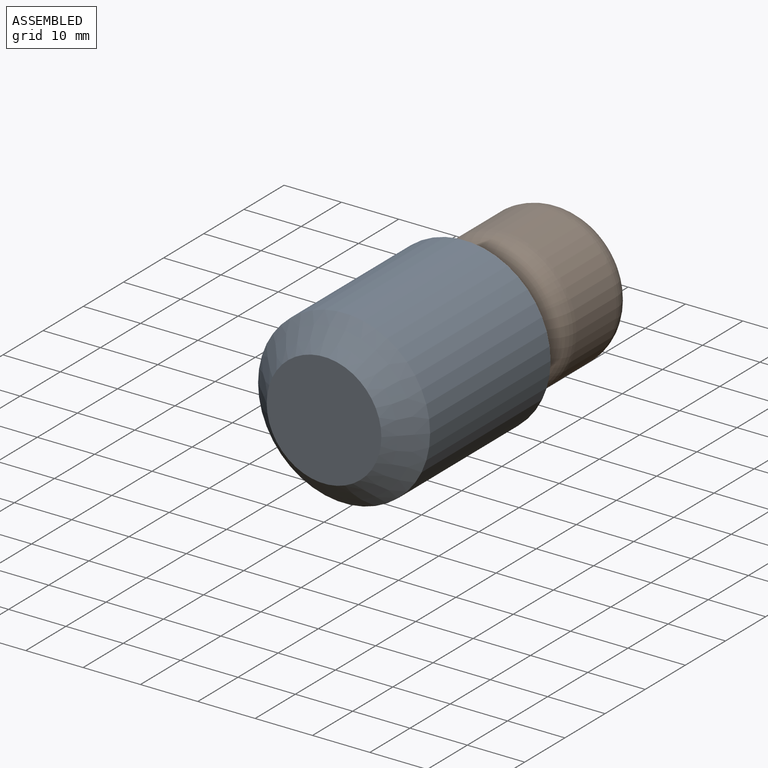
[diagram: assembled view]
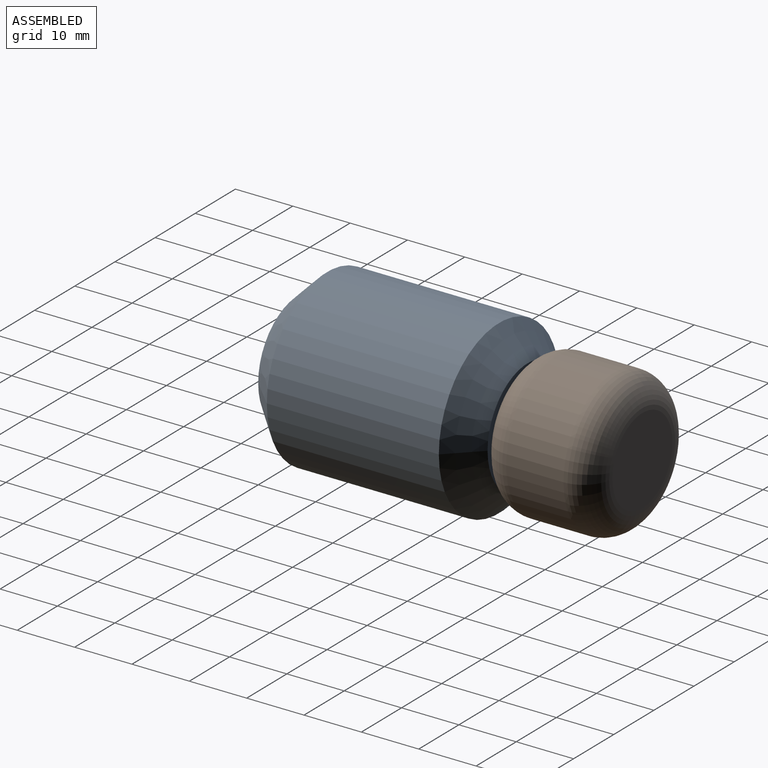
[diagram: assembled view, second angle]
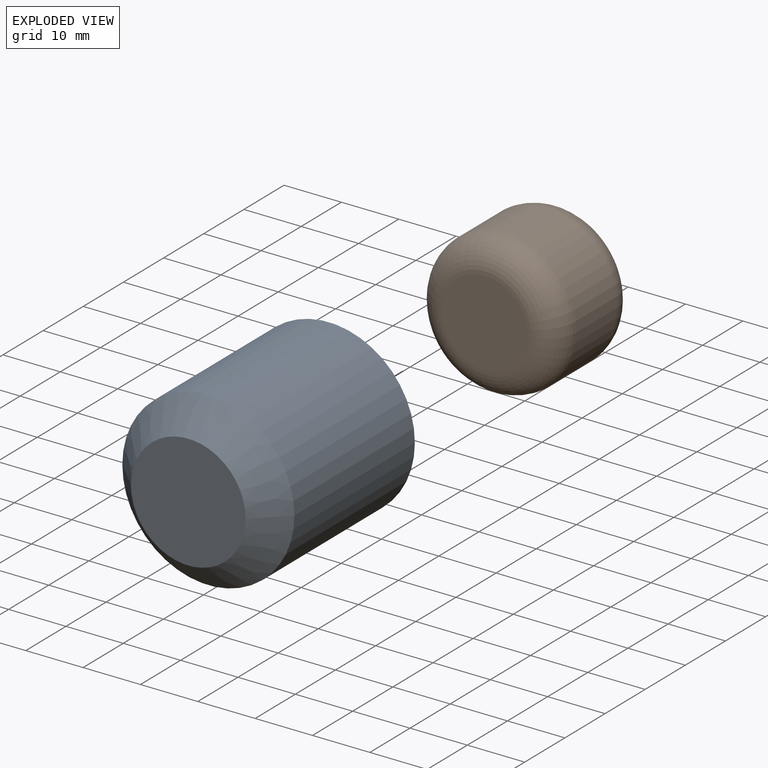
[diagram: exploded view]
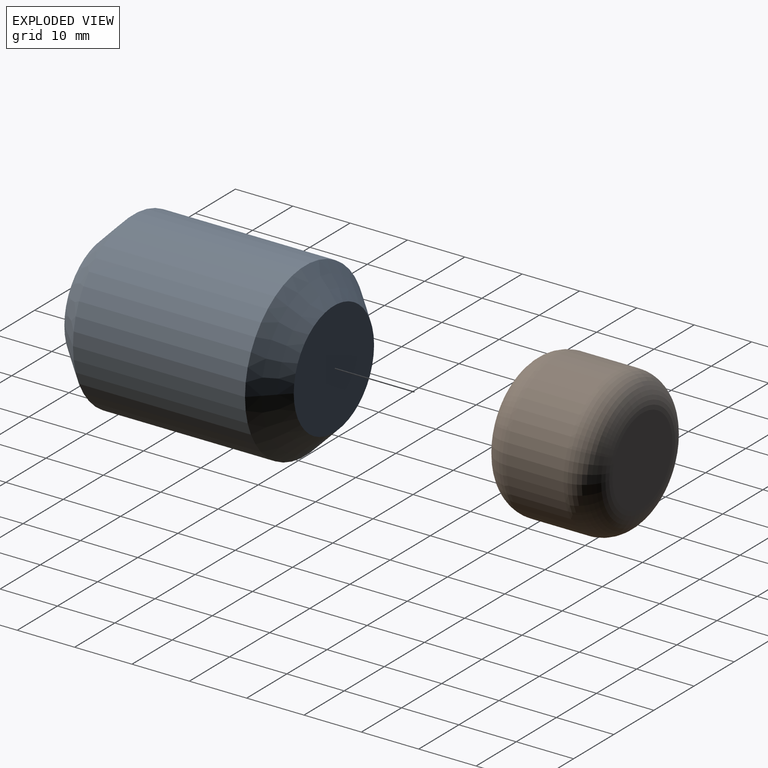
[diagram: exploded view, second angle]
ASSEMBLY  parts=2 mates=2
PART A: 5 faces, bbox 30x30x40 mm
  f0: cylinder r=15mm len=30mm, axis (0,0,-1), area 2827.4mm2, adj f3,f4
  f1: plane 20x20mm, normal (0,0,1), area 314.2mm2, adj f3
  f2: plane 20x20mm, normal (0,0,-1), area 314.2mm2, adj f4
  f3: cone r=10mm half-angle=45deg, axis (0,0,-1), area 555.4mm2, adj f0,f1
  f4: cone r=15mm half-angle=45deg, axis (0,0,1), area 555.4mm2, adj f0,f2
PART B: 5 faces, bbox 27.1x27.1x20 mm
  f0: cylinder r=12.5mm len=25mm, axis (0,0,-1), area 785.4mm2, adj f3,f4
  f1: plane 15x15mm, normal (0,0,1), area 176.7mm2, adj f4
  f2: plane 15x15mm, normal (0,0,-1), area 176.7mm2, adj f3
  f3: torus R=7.5mm, axis (0,0,1), area 527.2mm2, adj f0,f2
  f4: torus R=7.5mm, axis (0,0,1), area 527.2mm2, adj f0,f1
PLACE A rot(axis=(0,-0.71,0.71),180deg) t=(0,-20,0)mm
PLACE B rot(axis=(0,-0.71,0.71),180deg) t=(0,0,0)mm
MATE cylindrical B.f0 <-> A.f0  axis (0,-1,0) through (0,-5,0)mm
MATE fastened A.f0 <-> B.f0  axis (0,1,0) through (0,-20,0)mm
